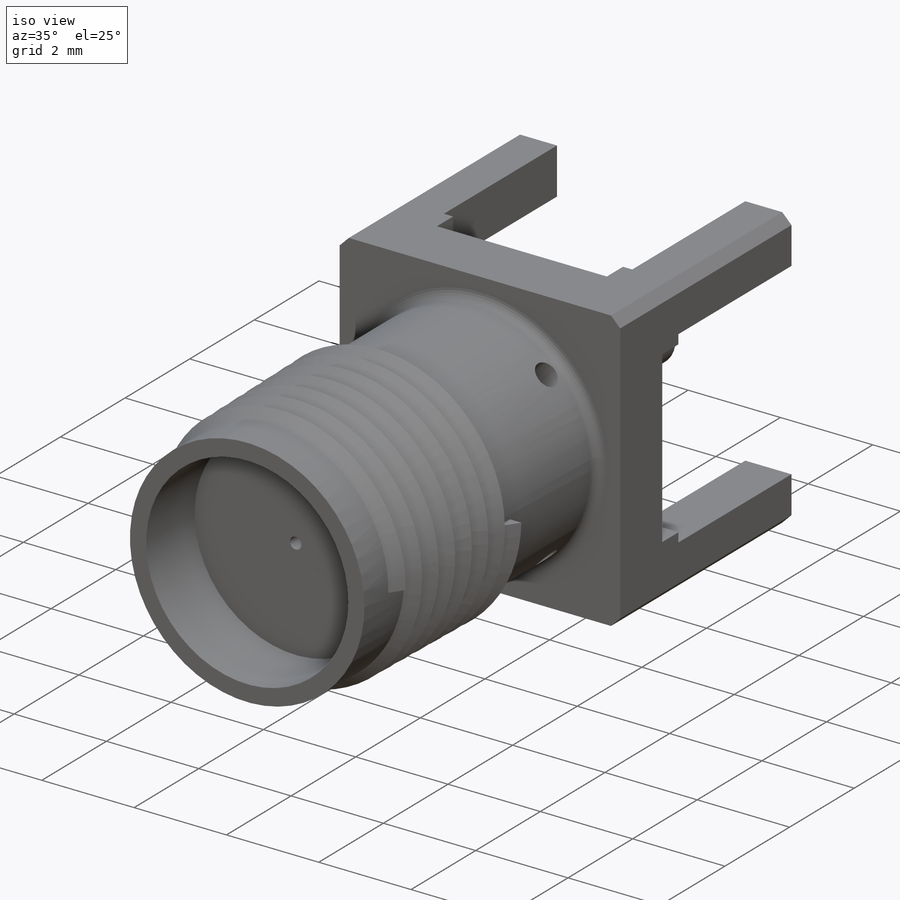
[diagram: iso view]
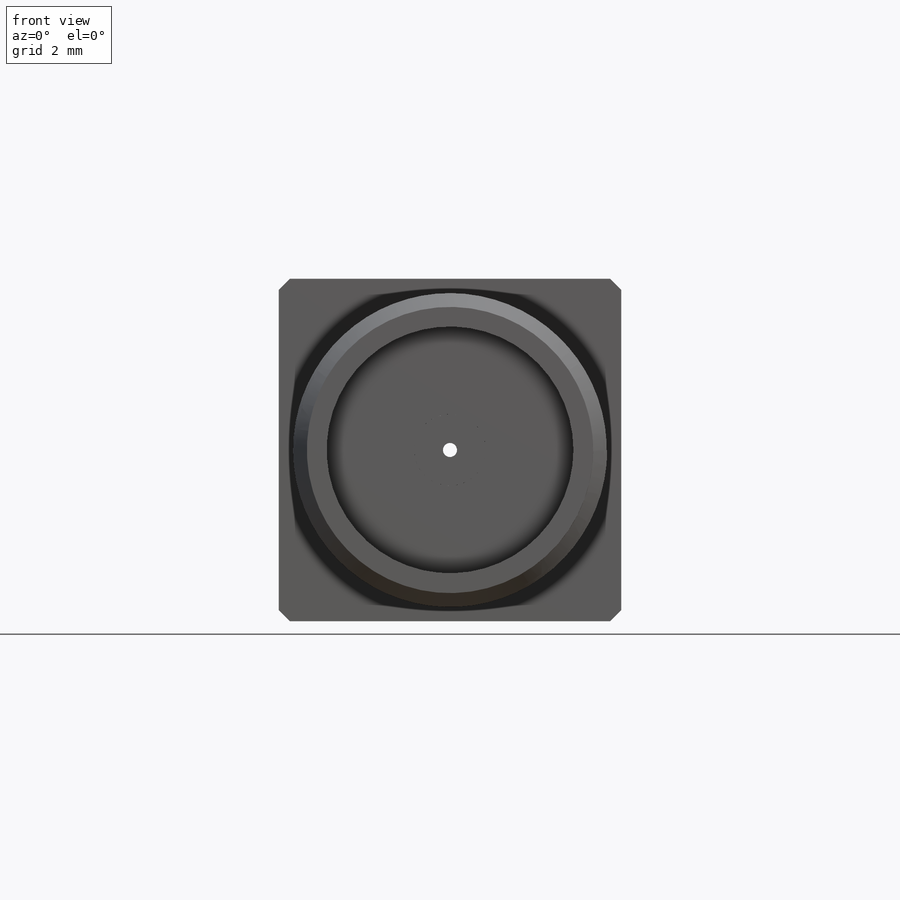
[diagram: front view]
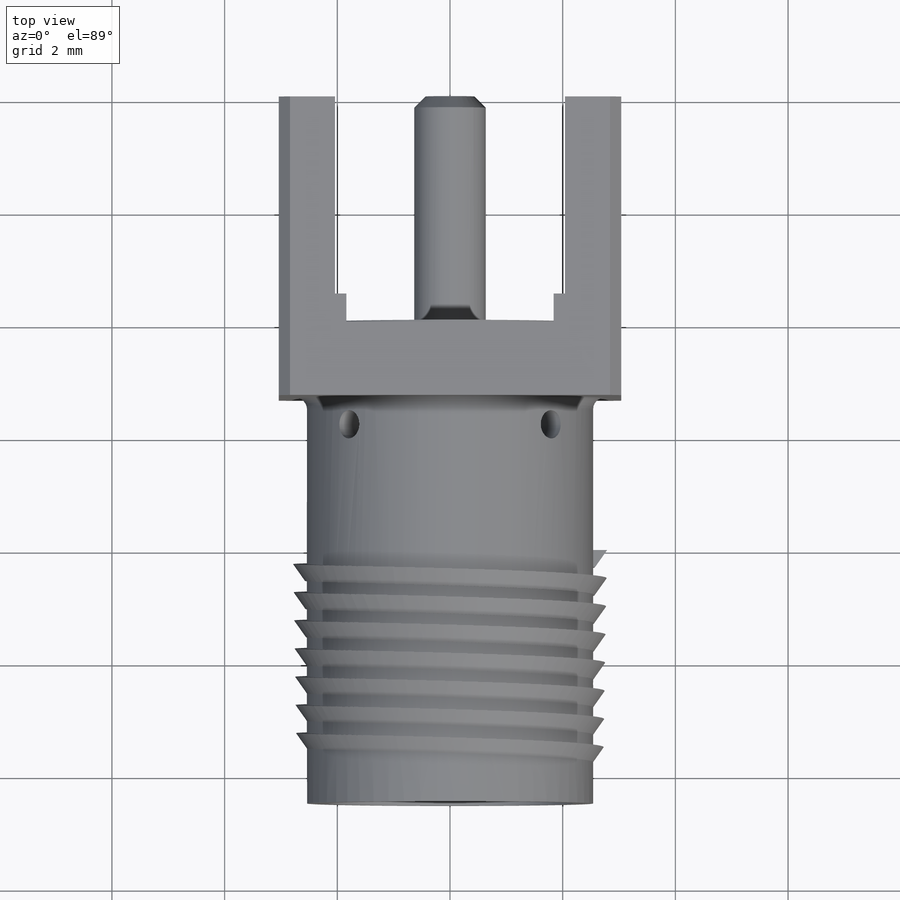
[diagram: top view]
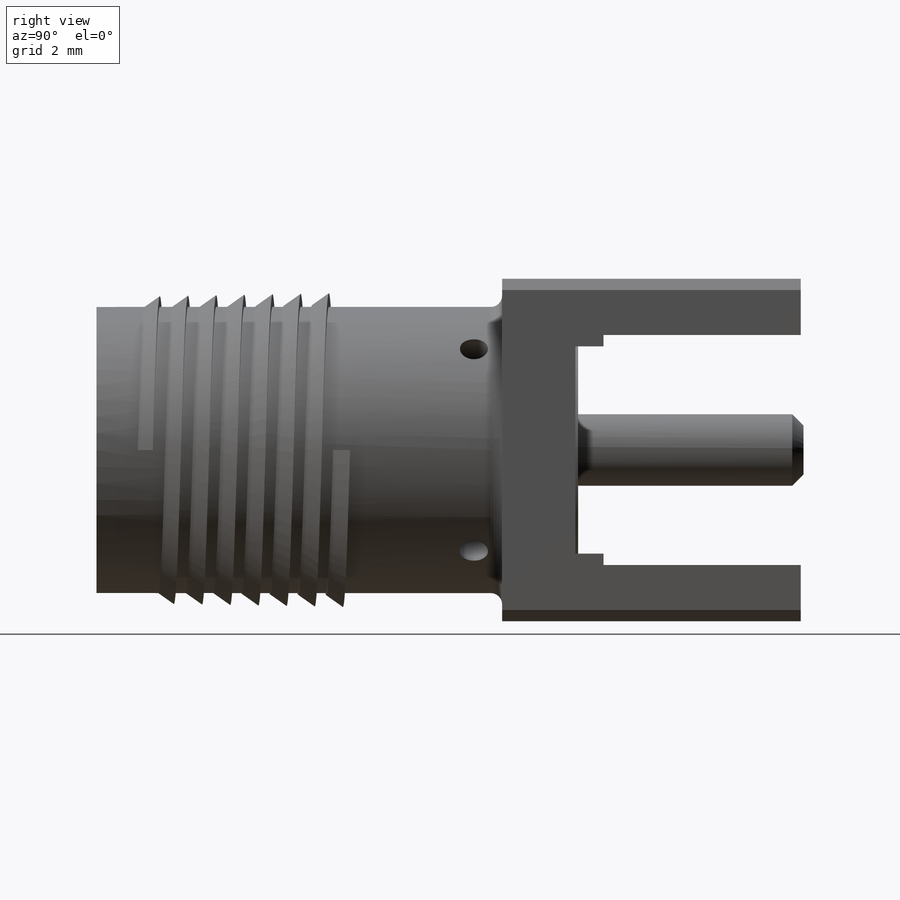
[diagram: right view]
SOLIDWORKS PART (.sldprt)
format: sldprt  version: not decoded by parser v0  size: 828,416 bytes
history: native  units: mm
features: sketch x12, cut_extrude x6, plane x4, extrude x3, chamfer x2, material x1, helix x1, sweep x1, pattern_circular x1, fillet x1 (+12 scaffold rows collapsed)
feature tree (44):
  scaffold x12  (default folders/planes/origin — collapsed)
  material  "Brass"
  sketch  "Sketch1"  dims[D1=6.08mm]
  extrude  "Boss-Extrude1"  Depth=5.3mm
  sketch  "Sketch2"  dims[D1=1.0mm]
  cut_extrude  "Cut-Extrude1"  Depth=3.5mm
  sketch  "Sketch11"  dims[D1=4.73mm]
  cut_extrude  "Cut-Extrude2"  [1 undecoded]
  plane  "Plane1"  Offset=11mm
  sketch  "Sketch3"  dims[c1.D1=5.08mm c2.D1=7.2mm c2.D2=1.8mm c2.D5=0.35mm c2.D6=1.0mm c2.D7=5.0mm]
  sketch  "Sketch5"  dims[D1=1.27mm]
  extrude  "Boss-Extrude3"  Depth=7.05mm
  plane  "Plane2"  Offset=4.5mm
  sketch  "Sketch8"  dims[c1.D1=~3.25032mm c1.D2=0.5mm c1.D3=0.2mm c1.D4=~0.62968mm c2.D1=0.5mm c2.D2=0.2mm c2.D3=0.2mm]
  sketch  "Sketch6"  dims[D1=0.0mm D2=0.2mm]
  sketch  "Sketch9"
  helix  "Helix/Spiral1"  Pitch=3.5mm
  sketch  "Sketch10"  dims[c1.D1=0.4mm c1.D2=0.1mm c1.D3=0.3mm c2.D1=0.3mm c2.D2=0.075mm c2.D3=0.5mm]
  sweep  "Sweep1"
  cut_extrude  "Cut-Extrude3"  Depth=0.5mm
  cut_extrude  "Cut-Extrude5"  [1 undecoded]
  pattern_circular  "CirPattern1"  Count=4 Angle=360deg
  chamfer  "Chamfer3"  Distance=0.2mm Angle=45deg
  sketch  "Sketch12"  dims[D1=0.25mm]
  extrude  "Boss-Extrude4"  Depth=4mm
  chamfer  "Chamfer4"  Distance=0.2mm Angle=45deg
  plane  "Plane3"  Offset=1mm
  fillet  "Fillet1"  Radius=0.2mm
  sketch  "Sketch14"  dims[D1=0.5mm D2=0.5mm]
  cut_extrude  "Cut-Extrude6"  [1 undecoded]
  plane  "Plane4"  Offset=1mm
  sketch  "Sketch15"  dims[D1=0.5mm D2=0.5mm]
  cut_extrude  "Cut-Extrude7"  [1 undecoded]
decode coverage: 21 of 27 modeling features carry decoded parameters
note: ~ marks probable driven/reference dimensions
note: 4 parameter values undecoded
summary: no parameter record found for 4 features
note: suppression state not decoded; provenance and decode notes live in map.json
